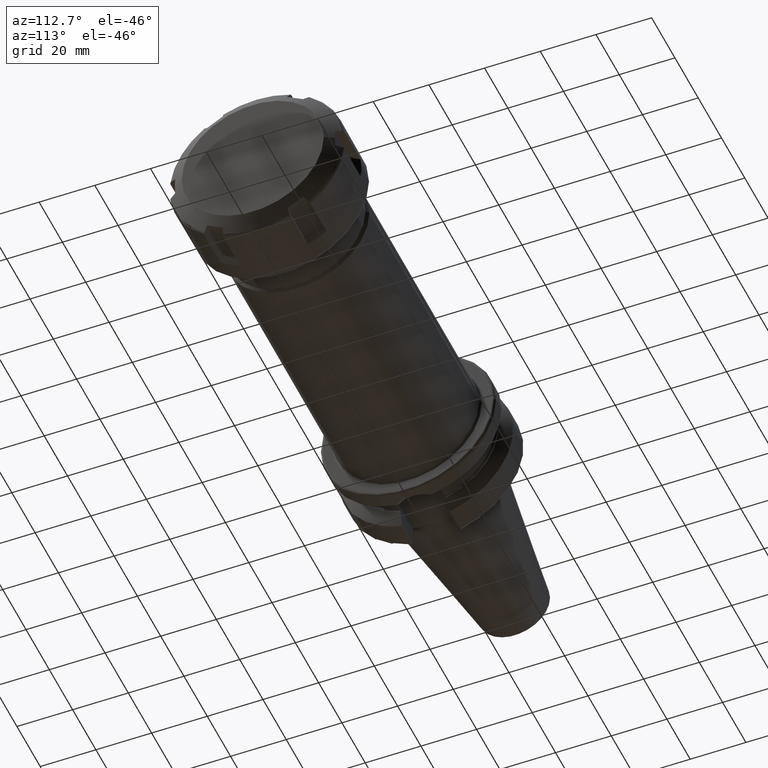
[diagram: clean part render]
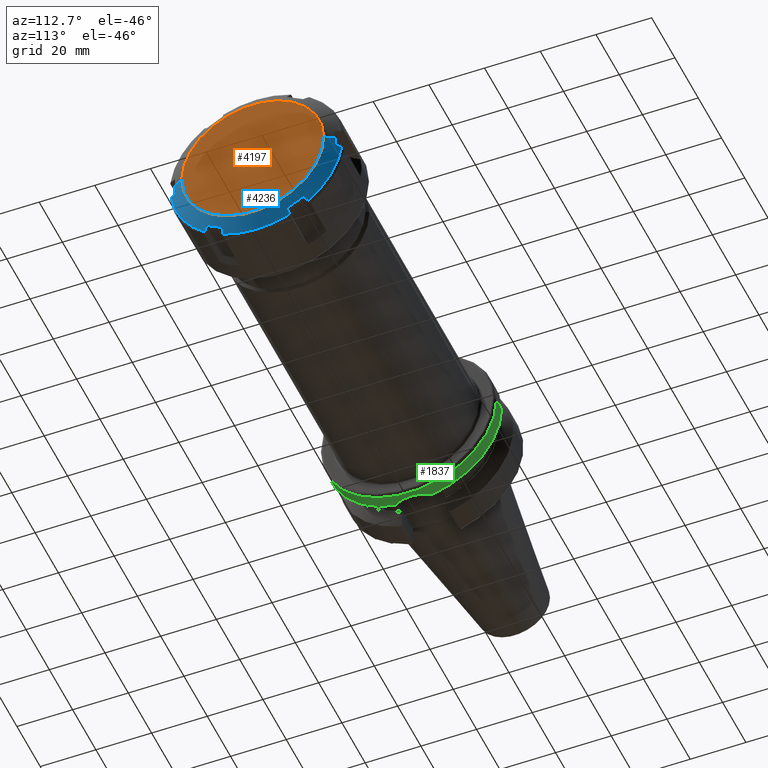
[diagram: same view with three faces highlighted in distinct colors, each labeled with its STEP entity id]
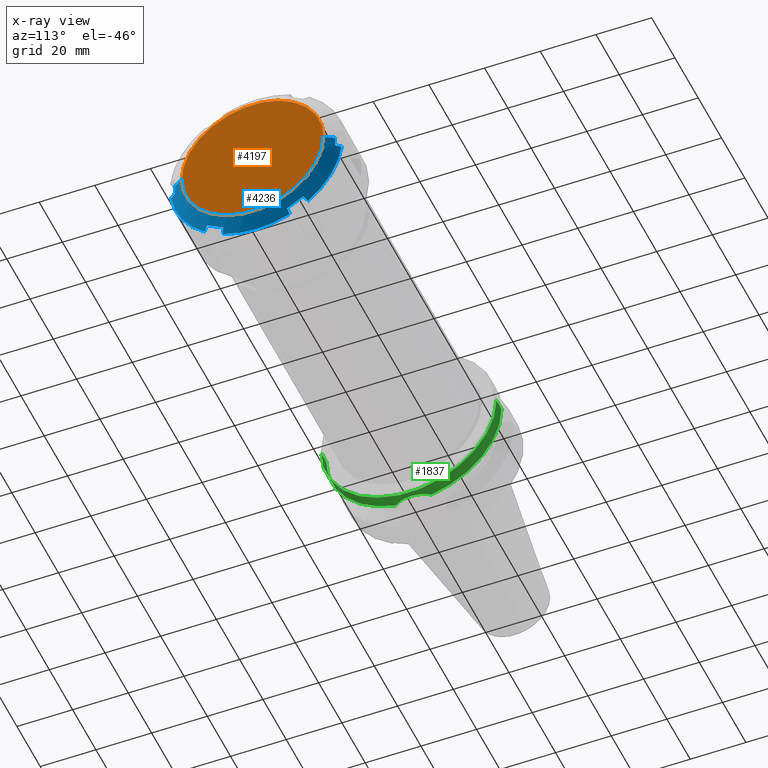
[diagram: x-ray of the same camera — body ghosted, the three highlighted faces saturated]
A machine part, auxiliary view with three faces highlighted in distinct colors.
The next image is the same camera in x-ray (body ghosted, the three faces saturated) — at least one of them is partly hidden behind the body in this view.
Their STEP definitions:

[orange] entity #4197 — the highlighted planar face has unit normal (1, 0, 0).
#3431=CARTESIAN_POINT('',(2.55E1,0.E0,0.E0));
#3432=DIRECTION('',(-1.E0,0.E0,0.E0));
#3433=DIRECTION('',(0.E0,1.E0,0.E0));
#3434=AXIS2_PLACEMENT_3D('',#3431,#3432,#3433);
#3791=CARTESIAN_POINT('',(2.55E1,0.E0,0.E0));
#3792=DIRECTION('',(1.E0,0.E0,0.E0));
#3793=DIRECTION('',(0.E0,1.E0,0.E0));
#3794=AXIS2_PLACEMENT_3D('',#3791,#3792,#3793);
#4074=CARTESIAN_POINT('',(2.55E1,2.55E1,0.E0));
#4075=CARTESIAN_POINT('',(2.55E1,-2.55E1,0.E0));
#4076=VERTEX_POINT('',#4074);
#4077=VERTEX_POINT('',#4075);
#4186=CARTESIAN_POINT('',(2.55E1,0.E0,0.E0));
#4187=DIRECTION('',(1.E0,0.E0,0.E0));
#4188=DIRECTION('',(0.E0,-1.E0,0.E0));
#4189=AXIS2_PLACEMENT_3D('',#4186,#4187,#4188);
#4190=PLANE('',#4189);
#4192=ORIENTED_EDGE('',*,*,#4191,.T.);
#4194=ORIENTED_EDGE('',*,*,#4193,.F.);
#4195=EDGE_LOOP('',(#4192,#4194));
#4196=FACE_OUTER_BOUND('',#4195,.F.);
#4197=ADVANCED_FACE('',(#4196),#4190,.T.);
#3435=CIRCLE('',#3434,2.55E1);
#3795=CIRCLE('',#3794,2.55E1);
#4191=EDGE_CURVE('',#4076,#4077,#3435,.T.);
#4193=EDGE_CURVE('',#4076,#4077,#3795,.T.);

[blue] entity #4236 — the highlighted conical surface has half-angle 60 deg.
#3366=CARTESIAN_POINT('',(2.351130782476E1,1.727618510266E1,-2.322323035877E1));
#3367=CARTESIAN_POINT('',(2.332842823305E1,1.749804769833E1,-2.345297580209E1));
#3368=CARTESIAN_POINT('',(2.295978520802E1,1.794515018410E1,-2.391596397947E1));
#3369=CARTESIAN_POINT('',(2.258538211756E1,1.839901028735E1,-2.438594987460E1));
#3370=CARTESIAN_POINT('',(2.239674230313E1,1.862763043938E1,-2.462269297237E1));
#3372=CARTESIAN_POINT('',(2.351130782476E1,1.147381489730E1,-2.657323035877E1));
#3373=CARTESIAN_POINT('',(2.356105051412E1,1.211849164162E1,-2.620102606690E1));
#3374=CARTESIAN_POINT('',(2.362777625606E1,1.340784245763E1,-2.545661902620E1));
#3375=CARTESIAN_POINT('',(2.362777583851E1,1.534217003691E1,-2.433983447760E1));
#3376=CARTESIAN_POINT('',(2.356105010187E1,1.663151370114E1,-2.359543156598E1));
#3377=CARTESIAN_POINT('',(2.351130782476E1,1.727618510266E1,-2.322323035877E1));
#3379=CARTESIAN_POINT('',(2.239674230313E1,1.201006240397E1,-2.844334765900E1));
#3380=CARTESIAN_POINT('',(2.258533438069E1,1.191936989944E1,-2.812706530876E1));
#3381=CARTESIAN_POINT('',(2.295968976826E1,1.173930318813E1,-2.749909805885E1));
#3382=CARTESIAN_POINT('',(2.332838053240E1,1.156187195180E1,-2.688032180249E1));
#3383=CARTESIAN_POINT('',(2.351130782476E1,1.147381489730E1,-2.657323035877E1));
#3385=CARTESIAN_POINT('',(2.239674230313E1,0.E0,0.E0));
#3386=DIRECTION('',(-1.E0,0.E0,0.E0));
#3387=DIRECTION('',(0.E0,3.889898754327E-1,-9.212420294422E-1));
#3388=AXIS2_PLACEMENT_3D('',#3385,#3386,#3387);
#3390=CARTESIAN_POINT('',(2.351130782476E1,-1.147381489730E1,
-2.657323035877E1));
#3391=CARTESIAN_POINT('',(2.332842823305E1,-1.156184898978E1,
-2.688024172443E1));
#3392=CARTESIAN_POINT('',(2.295978520802E1,-1.173925727016E1,
-2.749893792389E1));
#3393=CARTESIAN_POINT('',(2.258538211756E1,-1.191934694315E1,
-2.812698525064E1));
#3394=CARTESIAN_POINT('',(2.239674230313E1,-1.201006240397E1,
-2.844334765900E1));
#3396=CARTESIAN_POINT('',(2.351130782476E1,-1.727618510266E1,
-2.322323035877E1));
#3397=CARTESIAN_POINT('',(2.356105051412E1,-1.663150835835E1,
-2.359543465064E1));
#3398=CARTESIAN_POINT('',(2.362777625606E1,-1.534215754233E1,
-2.433984169135E1));
#3399=CARTESIAN_POINT('',(2.362777583851E1,-1.340782996305E1,
-2.545662623995E1));
#3400=CARTESIAN_POINT('',(2.356105010187E1,-1.211848629883E1,
-2.620102915156E1));
#3401=CARTESIAN_POINT('',(2.351130782476E1,-1.147381489730E1,
-2.657323035877E1));
#3403=CARTESIAN_POINT('',(2.239674230313E1,-1.862763043938E1,
-2.462269297237E1));
#3404=CARTESIAN_POINT('',(2.258533438069E1,-1.839906814157E1,
-2.438600978440E1));
#3405=CARTESIAN_POINT('',(2.295968976826E1,-1.794526590606E1,
-2.391608381307E1));
#3406=CARTESIAN_POINT('',(2.332838053240E1,-1.749810556696E1,
-2.345303572681E1));
#3407=CARTESIAN_POINT('',(2.351130782476E1,-1.727618510266E1,
-2.322323035877E1));
#3409=CARTESIAN_POINT('',(2.239674230313E1,0.E0,0.E0));
#3410=DIRECTION('',(-1.E0,0.E0,0.E0));
#3411=DIRECTION('',(0.E0,-6.033240628145E-1,-7.974961286608E-1));
#3412=AXIS2_PLACEMENT_3D('',#3409,#3410,#3411);
#3414=CARTESIAN_POINT('',(2.351130782476E1,-2.874999999997E1,-3.35E0));
#3415=CARTESIAN_POINT('',(2.332842823305E1,-2.905989668812E1,
-3.427265922344E0));
#3416=CARTESIAN_POINT('',(2.295978520802E1,-2.968440745426E1,
-3.582973944421E0));
#3417=CARTESIAN_POINT('',(2.258538211756E1,-3.031835723049E1,
-3.741035376033E0));
#3418=CARTESIAN_POINT('',(2.239674230313E1,-3.063769284335E1,
-3.820654686622E0));
#3420=CARTESIAN_POINT('',(2.362361162515E1,-2.874999999997E1,0.E0));
#3421=CARTESIAN_POINT('',(2.362361162515E1,-2.874999999997E1,
-3.723033754199E-1));
#3422=CARTESIAN_POINT('',(2.361525781864E1,-2.874999999997E1,
-1.116855572672E0));
#3423=CARTESIAN_POINT('',(2.357773435590E1,-2.874999999997E1,
-2.233506677949E0));
#3424=CARTESIAN_POINT('',(2.353617556265E1,-2.874999999997E1,
-2.977849684408E0));
#3425=CARTESIAN_POINT('',(2.351130782476E1,-2.874999999997E1,-3.35E0));
#3427=DIRECTION('',(-5.E-1,-8.660254037844E-1,0.E0));
#3428=VECTOR('',#3427,3.752776749692E0);
#3429=CARTESIAN_POINT('',(2.55E1,-2.55E1,0.E0));
#3430=LINE('',#3429,#3428);
#3431=CARTESIAN_POINT('',(2.55E1,0.E0,0.E0));
#3432=DIRECTION('',(-1.E0,0.E0,0.E0));
#3433=DIRECTION('',(0.E0,1.E0,0.E0));
#3434=AXIS2_PLACEMENT_3D('',#3431,#3432,#3433);
#3436=DIRECTION('',(-5.E-1,8.660254037844E-1,0.E0));
#3437=VECTOR('',#3436,3.752776749692E0);
#3438=CARTESIAN_POINT('',(2.55E1,2.55E1,0.E0));
#3439=LINE('',#3438,#3437);
#3440=CARTESIAN_POINT('',(2.351130782476E1,2.874999999997E1,-3.35E0));
#3441=CARTESIAN_POINT('',(2.353617695757E1,2.874999999997E1,-2.977828809184E0));
#3442=CARTESIAN_POINT('',(2.357773662637E1,2.874999999997E1,-2.233458033279E0));
#3443=CARTESIAN_POINT('',(2.361525848375E1,2.874999999997E1,-1.116817767542E0));
#3444=CARTESIAN_POINT('',(2.362361162515E1,2.874999999997E1,
-3.722872262064E-1));
#3445=CARTESIAN_POINT('',(2.362361162515E1,2.874999999997E1,0.E0));
#3447=CARTESIAN_POINT('',(2.239674230313E1,3.063769284335E1,-3.820654686622E0));
#3448=CARTESIAN_POINT('',(2.258533438069E1,3.031843804101E1,-3.741055524357E0));
#3449=CARTESIAN_POINT('',(2.295968976826E1,2.968456909419E1,-3.583014245782E0));
#3450=CARTESIAN_POINT('',(2.332838053240E1,2.905997751876E1,-3.427286075687E0));
#3451=CARTESIAN_POINT('',(2.351130782476E1,2.874999999997E1,-3.35E0));
#3453=CARTESIAN_POINT('',(2.239674230313E1,0.E0,0.E0));
#3454=DIRECTION('',(-1.E0,0.E0,0.E0));
#3455=DIRECTION('',(0.E0,9.923139382473E-1,-1.237459007814E-1));
#3456=AXIS2_PLACEMENT_3D('',#3453,#3454,#3455);
#3717=CARTESIAN_POINT('',(2.362361162515E1,-2.874999999997E1,0.E0));
#3784=CARTESIAN_POINT('',(2.362361162515E1,2.874999999997E1,0.E0));
#4074=CARTESIAN_POINT('',(2.55E1,2.55E1,0.E0));
#4075=CARTESIAN_POINT('',(2.55E1,-2.55E1,0.E0));
#4076=VERTEX_POINT('',#4074);
#4077=VERTEX_POINT('',#4075);
#4088=VERTEX_POINT('',#3784);
#4089=VERTEX_POINT('',#3440);
#4090=VERTEX_POINT('',#3447);
#4143=VERTEX_POINT('',#3717);
#4145=VERTEX_POINT('',#3414);
#4146=VERTEX_POINT('',#3418);
#4156=VERTEX_POINT('',#3390);
#4157=VERTEX_POINT('',#3394);
#4158=VERTEX_POINT('',#3396);
#4159=VERTEX_POINT('',#3403);
#4171=VERTEX_POINT('',#3366);
#4172=VERTEX_POINT('',#3370);
#4173=VERTEX_POINT('',#3372);
#4174=VERTEX_POINT('',#3379);
#4198=CARTESIAN_POINT('',(2.394837115156E1,0.E0,0.E0));
#4199=DIRECTION('',(-1.E0,0.E0,0.E0));
#4200=DIRECTION('',(0.E0,1.E0,0.E0));
#4201=AXIS2_PLACEMENT_3D('',#4198,#4199,#4200);
#4202=CONICAL_SURFACE('',#4201,2.818749999998E1,6.E1);
#4204=ORIENTED_EDGE('',*,*,#4203,.F.);
#4206=ORIENTED_EDGE('',*,*,#4205,.F.);
#4208=ORIENTED_EDGE('',*,*,#4207,.F.);
#4210=ORIENTED_EDGE('',*,*,#4209,.T.);
#4212=ORIENTED_EDGE('',*,*,#4211,.F.);
#4214=ORIENTED_EDGE('',*,*,#4213,.F.);
#4216=ORIENTED_EDGE('',*,*,#4215,.F.);
#4218=ORIENTED_EDGE('',*,*,#4217,.T.);
#4220=ORIENTED_EDGE('',*,*,#4219,.F.);
#4222=ORIENTED_EDGE('',*,*,#4221,.F.);
#4224=ORIENTED_EDGE('',*,*,#4223,.F.);
#4225=ORIENTED_EDGE('',*,*,#4191,.F.);
#4227=ORIENTED_EDGE('',*,*,#4226,.T.);
#4229=ORIENTED_EDGE('',*,*,#4228,.F.);
#4231=ORIENTED_EDGE('',*,*,#4230,.F.);
#4233=ORIENTED_EDGE('',*,*,#4232,.T.);
#4234=EDGE_LOOP('',(#4204,#4206,#4208,#4210,#4212,#4214,#4216,#4218,#4220,#4222,
#4224,#4225,#4227,#4229,#4231,#4233));
#4235=FACE_OUTER_BOUND('',#4234,.F.);
#4236=ADVANCED_FACE('',(#4235),#4202,.T.);
#3371=B_SPLINE_CURVE_WITH_KNOTS('',3,(#3366,#3367,#3368,#3369,#3370),
.UNSPECIFIED.,.F.,.F.,(4,1,4),(0.E0,5.E-1,1.E0),.UNSPECIFIED.);
#3378=B_SPLINE_CURVE_WITH_KNOTS('',3,(#3372,#3373,#3374,#3375,#3376,#3377),
.UNSPECIFIED.,.F.,.F.,(4,1,1,4),(0.E0,3.333333333333E-1,6.666666666667E-1,1.E0),
.UNSPECIFIED.);
#3384=B_SPLINE_CURVE_WITH_KNOTS('',3,(#3379,#3380,#3381,#3382,#3383),
.UNSPECIFIED.,.F.,.F.,(4,1,4),(0.E0,5.E-1,1.E0),.UNSPECIFIED.);
#3389=CIRCLE('',#3388,3.087499999997E1);
#3395=B_SPLINE_CURVE_WITH_KNOTS('',3,(#3390,#3391,#3392,#3393,#3394),
.UNSPECIFIED.,.F.,.F.,(4,1,4),(0.E0,5.E-1,1.E0),.UNSPECIFIED.);
#3402=B_SPLINE_CURVE_WITH_KNOTS('',3,(#3396,#3397,#3398,#3399,#3400,#3401),
.UNSPECIFIED.,.F.,.F.,(4,1,1,4),(0.E0,3.333333333333E-1,6.666666666667E-1,1.E0),
.UNSPECIFIED.);
#3408=B_SPLINE_CURVE_WITH_KNOTS('',3,(#3403,#3404,#3405,#3406,#3407),
.UNSPECIFIED.,.F.,.F.,(4,1,4),(0.E0,5.E-1,1.E0),.UNSPECIFIED.);
#3413=CIRCLE('',#3412,3.087499999997E1);
#3419=B_SPLINE_CURVE_WITH_KNOTS('',3,(#3414,#3415,#3416,#3417,#3418),
.UNSPECIFIED.,.F.,.F.,(4,1,4),(0.E0,5.E-1,1.E0),.UNSPECIFIED.);
#3426=B_SPLINE_CURVE_WITH_KNOTS('',3,(#3420,#3421,#3422,#3423,#3424,#3425),
.UNSPECIFIED.,.F.,.F.,(4,1,1,4),(0.E0,3.333333333333E-1,6.666666666667E-1,1.E0),
.UNSPECIFIED.);
#3435=CIRCLE('',#3434,2.55E1);
#3446=B_SPLINE_CURVE_WITH_KNOTS('',3,(#3440,#3441,#3442,#3443,#3444,#3445),
.UNSPECIFIED.,.F.,.F.,(4,1,1,4),(0.E0,3.333333333333E-1,6.666666666667E-1,1.E0),
.UNSPECIFIED.);
#3452=B_SPLINE_CURVE_WITH_KNOTS('',3,(#3447,#3448,#3449,#3450,#3451),
.UNSPECIFIED.,.F.,.F.,(4,1,4),(0.E0,5.E-1,1.E0),.UNSPECIFIED.);
#3457=CIRCLE('',#3456,3.087499999997E1);
#4191=EDGE_CURVE('',#4076,#4077,#3435,.T.);
#4203=EDGE_CURVE('',#4171,#4172,#3371,.T.);
#4205=EDGE_CURVE('',#4173,#4171,#3378,.T.);
#4207=EDGE_CURVE('',#4174,#4173,#3384,.T.);
#4209=EDGE_CURVE('',#4174,#4157,#3389,.T.);
#4211=EDGE_CURVE('',#4156,#4157,#3395,.T.);
#4213=EDGE_CURVE('',#4158,#4156,#3402,.T.);
#4215=EDGE_CURVE('',#4159,#4158,#3408,.T.);
#4217=EDGE_CURVE('',#4159,#4146,#3413,.T.);
#4219=EDGE_CURVE('',#4145,#4146,#3419,.T.);
#4221=EDGE_CURVE('',#4143,#4145,#3426,.T.);
#4223=EDGE_CURVE('',#4077,#4143,#3430,.T.);
#4226=EDGE_CURVE('',#4076,#4088,#3439,.T.);
#4228=EDGE_CURVE('',#4089,#4088,#3446,.T.);
#4230=EDGE_CURVE('',#4090,#4089,#3452,.T.);
#4232=EDGE_CURVE('',#4090,#4172,#3457,.T.);

[green] entity #1837 — the highlighted cylindrical surface (partial cylindrical patch) has radius 31.4875 mm, axis along (1, 0, 0).
#246=CARTESIAN_POINT('',(2.162727746897E1,0.E0,0.E0));
#247=DIRECTION('',(1.E0,0.E0,0.E0));
#248=DIRECTION('',(0.E0,-1.E0,0.E0));
#249=AXIS2_PLACEMENT_3D('',#246,#247,#248);
#251=DIRECTION('',(-1.E0,0.E0,0.E0));
#252=VECTOR('',#251,4.372722531031E0);
#253=CARTESIAN_POINT('',(2.6E1,-3.14875E1,0.E0));
#254=LINE('',#253,#252);
#255=CARTESIAN_POINT('',(2.6E1,0.E0,0.E0));
#256=DIRECTION('',(-1.E0,0.E0,0.E0));
#257=DIRECTION('',(0.E0,1.E0,0.E0));
#258=AXIS2_PLACEMENT_3D('',#255,#256,#257);
#260=DIRECTION('',(-1.E0,0.E0,0.E0));
#261=VECTOR('',#260,4.372722531031E0);
#262=CARTESIAN_POINT('',(2.6E1,3.14875E1,0.E0));
#263=LINE('',#262,#261);
#264=CARTESIAN_POINT('',(2.162727746897E1,0.E0,0.E0));
#265=DIRECTION('',(1.E0,0.E0,0.E0));
#266=DIRECTION('',(0.E0,2.025221356988E-1,-9.792776851088E-1));
#267=AXIS2_PLACEMENT_3D('',#264,#265,#266);
#269=CARTESIAN_POINT('',(2.162727746897E1,-6.376922817779E0,-3.083500464774E1));
#270=CARTESIAN_POINT('',(2.179639421098E1,-6.206831610819E0,-3.087018371088E1));
#271=CARTESIAN_POINT('',(2.232364867117E1,-5.632321227298E0,-3.098422972396E1));
#272=CARTESIAN_POINT('',(2.308132499159E1,-4.553413356838E0,-3.116719517710E1));
#273=CARTESIAN_POINT('',(2.375642364916E1,-3.096696697708E0,-3.134706212903E1));
#274=CARTESIAN_POINT('',(2.416388565718E1,-1.551520318298E0,-3.146240625515E1));
#275=CARTESIAN_POINT('',(2.429615986887E1,3.673173569156E-2,-3.150094402831E1));
#276=CARTESIAN_POINT('',(2.415103100304E1,1.624802494737E0,-3.145868929477E1));
#277=CARTESIAN_POINT('',(2.373074835246E1,3.167093598881E0,-3.133996423654E1));
#278=CARTESIAN_POINT('',(2.304347310477E1,4.618481554386E0,-3.115752883213E1));
#279=CARTESIAN_POINT('',(2.229119413287E1,5.670903386055E0,-3.097688944820E1));
#280=CARTESIAN_POINT('',(2.177863162319E1,6.224695230405E0,-3.086648974378E1));
#281=CARTESIAN_POINT('',(2.162727746897E1,6.376915747817E0,-3.083500610986E1));
#1282=CARTESIAN_POINT('',(2.162727746897E1,3.14875E1,0.E0));
#1284=VERTEX_POINT('',#1282);
#1286=CARTESIAN_POINT('',(2.162727746897E1,-3.14875E1,0.E0));
#1287=CARTESIAN_POINT('',(2.162727746897E1,-6.376922817779E0,
-3.083500464774E1));
#1288=VERTEX_POINT('',#1286);
#1289=VERTEX_POINT('',#1287);
#1290=CARTESIAN_POINT('',(2.6E1,3.14875E1,0.E0));
#1291=VERTEX_POINT('',#1290);
#1292=CARTESIAN_POINT('',(2.6E1,-3.14875E1,0.E0));
#1293=VERTEX_POINT('',#1292);
#1296=CARTESIAN_POINT('',(2.162727746897E1,6.376915747817E0,-3.083500610986E1));
#1297=VERTEX_POINT('',#1296);
#1818=CARTESIAN_POINT('',(-7.002E1,0.E0,0.E0));
#1819=DIRECTION('',(1.E0,0.E0,0.E0));
#1820=DIRECTION('',(0.E0,-1.E0,0.E0));
#1821=AXIS2_PLACEMENT_3D('',#1818,#1819,#1820);
#1822=CYLINDRICAL_SURFACE('',#1821,3.14875E1);
#1824=ORIENTED_EDGE('',*,*,#1823,.F.);
#1826=ORIENTED_EDGE('',*,*,#1825,.F.);
#1828=ORIENTED_EDGE('',*,*,#1827,.F.);
#1830=ORIENTED_EDGE('',*,*,#1829,.T.);
#1832=ORIENTED_EDGE('',*,*,#1831,.F.);
#1834=ORIENTED_EDGE('',*,*,#1833,.F.);
#1835=EDGE_LOOP('',(#1824,#1826,#1828,#1830,#1832,#1834));
#1836=FACE_OUTER_BOUND('',#1835,.F.);
#1837=ADVANCED_FACE('',(#1836),#1822,.T.);
#250=CIRCLE('',#249,3.14875E1);
#259=CIRCLE('',#258,3.14875E1);
#268=CIRCLE('',#267,3.14875E1);
#282=B_SPLINE_CURVE_WITH_KNOTS('',3,(#269,#270,#271,#272,#273,#274,#275,#276,
#277,#278,#279,#280,#281),.UNSPECIFIED.,.F.,.F.,(4,1,1,1,1,1,1,1,1,1,4),(0.E0,
5.022508536415E-2,1.633285299657E-1,2.764319745673E-1,3.895354191688E-1,
5.026388637704E-1,6.157423083720E-1,7.288457529735E-1,8.419491975751E-1,
9.550526421767E-1,1.E0),.UNSPECIFIED.);
#1823=EDGE_CURVE('',#1288,#1289,#250,.T.);
#1825=EDGE_CURVE('',#1293,#1288,#254,.T.);
#1827=EDGE_CURVE('',#1291,#1293,#259,.T.);
#1829=EDGE_CURVE('',#1291,#1284,#263,.T.);
#1831=EDGE_CURVE('',#1297,#1284,#268,.T.);
#1833=EDGE_CURVE('',#1289,#1297,#282,.T.);